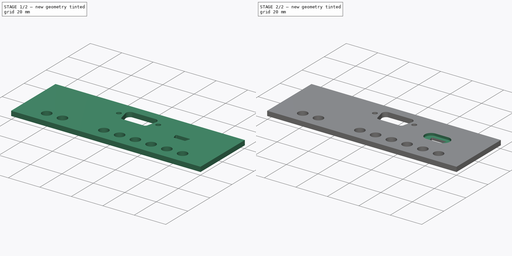
[diagram: build sequence overview — one tinted view per stage of 2, left to right]
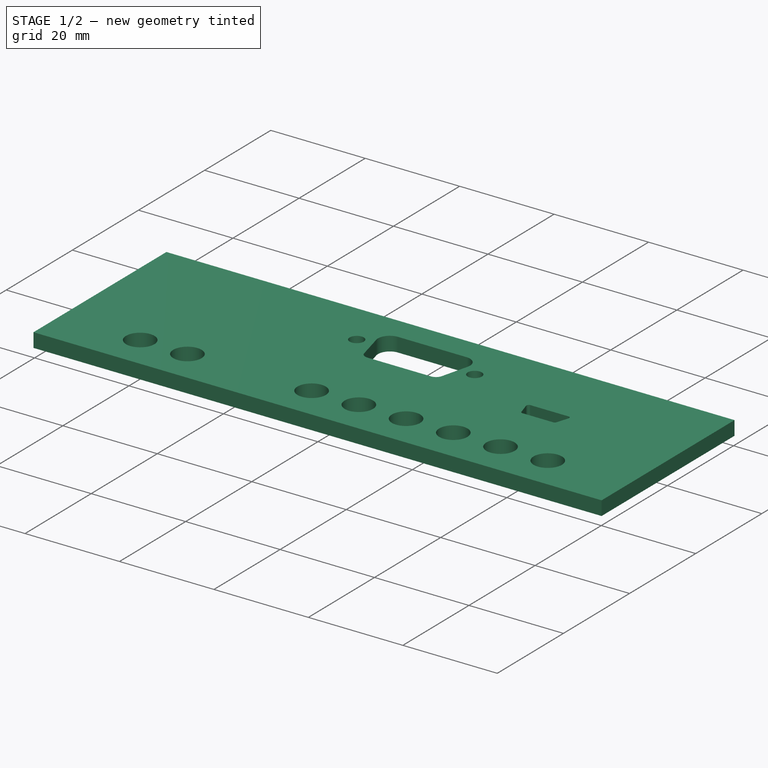
[diagram: stage 1 of 2 — iso view after this stage's code; geometry added in this stage tinted green]
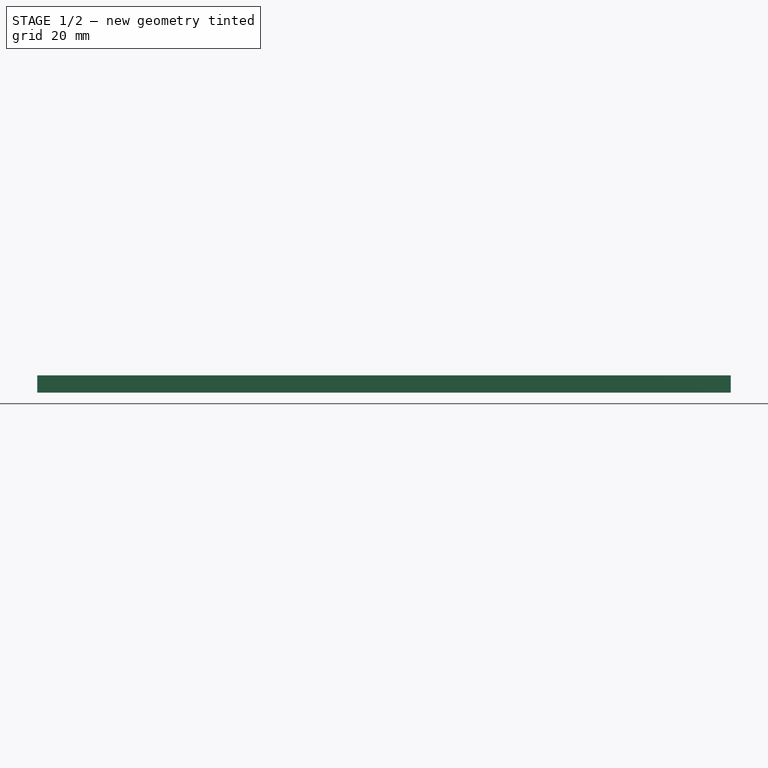
[diagram: stage 1 of 2 — front view after this stage's code; geometry added in this stage tinted green]
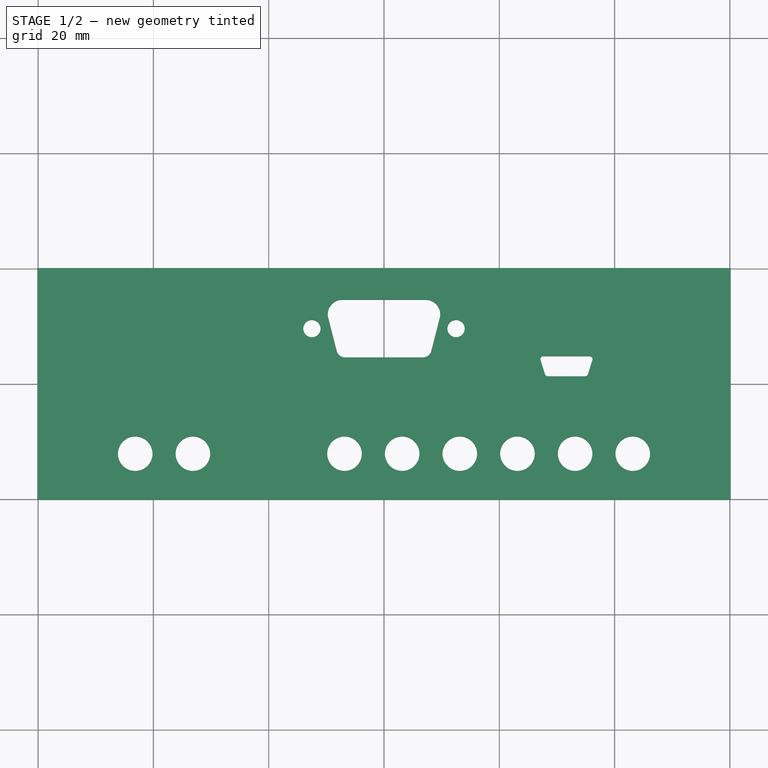
[diagram: stage 1 of 2 — top view after this stage's code; geometry added in this stage tinted green]
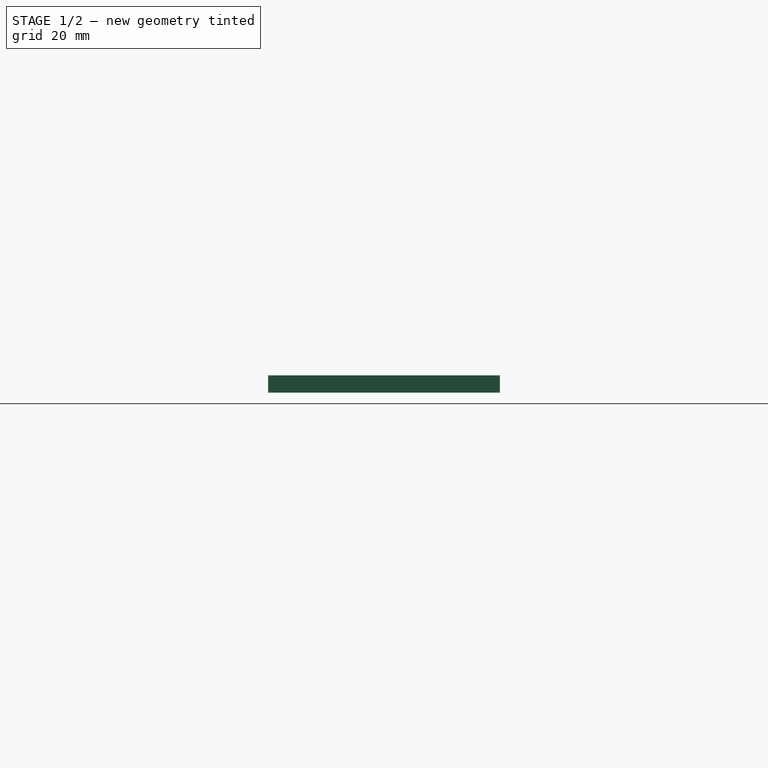
[diagram: stage 1 of 2 — right view after this stage's code; geometry added in this stage tinted green]
FCSTD DOCUMENT  (FreeCAD 0.21R33694 (Git))
Label: backside-fc21-5
License: All rights reserved
LicenseURL: http://en.wikipedia.org/wiki/All_rights_reserved
objects: Sketcher::SketchObject×2, PartDesign::Pad×1, PartDesign::Plane×1, PartDesign::Pocket×1, PartDesign::Body×1
note: 8 computed .brp shape members not serialized (recipe doc carries the construction recipe); baked Part::Feature solids carry a one-line shape summary decoded from their .brp

FEATURE [Sketcher::SketchObject] Sketch
  FullyConstrained = true
  MapMode = 5
  Support = -> [XY_Plane]
  sketch-geometry (43):
    g0: LineSegment StartX=-60.15 StartY=20.1 StartZ=0 EndX=60.15 EndY=20.1 EndZ=0
    g1: LineSegment StartX=60.15 StartY=20.1 StartZ=0 EndX=60.15 EndY=-20.1 EndZ=0
    g2: LineSegment StartX=60.15 StartY=-20.1 StartZ=0 EndX=-60.15 EndY=-20.1 EndZ=0
    g3: LineSegment StartX=-60.15 StartY=-20.1 StartZ=0 EndX=-60.15 EndY=20.1 EndZ=0
    g4: LineSegment StartX=28.4 StartY=1.325 StartZ=0 EndX=34.9 EndY=1.325 EndZ=0
    g5: LineSegment StartX=35.6723 StartY=4.825 StartZ=0 EndX=27.6277 EndY=4.825 EndZ=0
    g6: Circle CenterX=-12.5 CenterY=9.6 CenterZ=0 NormalX=0 NormalY=0 NormalZ=1 AngleXU=0 Radius=1.5
    g7: Circle CenterX=12.5 CenterY=9.6 CenterZ=0 NormalX=0 NormalY=0 NormalZ=1 AngleXU=0 Radius=1.5
    g8: LineSegment StartX=-7.25 StartY=14.6 StartZ=0 EndX=7.25 EndY=14.6 EndZ=0
    g9: LineSegment StartX=6.75 StartY=4.6 StartZ=0 EndX=-6.75 EndY=4.6 EndZ=0
    g10: LineSegment StartX=8.20337 StartY=5.72889 StartZ=0 EndX=9.67228 EndY=11.4815 EndZ=0
    g11: LineSegment StartX=-8.20337 StartY=5.72889 StartZ=0 EndX=-9.67228 EndY=11.4815 EndZ=0
    g12: ArcOfCircle CenterX=-6.75 CenterY=6.1 CenterZ=0 NormalX=0 NormalY=0 NormalZ=1 AngleXU=0 Radius=1.5 StartAngle=3.3916 EndAngle=4.71239
    g13: ArcOfCircle CenterX=-7.25 CenterY=12.1 CenterZ=0 NormalX=0 NormalY=0 NormalZ=1 AngleXU=0 Radius=2.5 StartAngle=1.5708 EndAngle=3.3916
    g14: ArcOfCircle CenterX=6.75 CenterY=6.1 CenterZ=0 NormalX=0 NormalY=0 NormalZ=1 AngleXU=0 Radius=1.5 StartAngle=4.71239 EndAngle=6.03318
    g15: ArcOfCircle CenterX=7.25 CenterY=12.1 CenterZ=0 NormalX=0 NormalY=0 NormalZ=1 AngleXU=0 Radius=2.5 StartAngle=6.03318 EndAngle=7.85398
    g16: LineSegment StartX=-8.20337 StartY=5.72889 StartZ=0 EndX=-12.5 EndY=9.6 EndZ=0
    g17: LineSegment StartX=8.20337 StartY=5.72889 StartZ=0 EndX=12.5 EndY=9.6 EndZ=0
    g18: LineSegment StartX=-12.5 StartY=9.6 StartZ=0 EndX=-9.67228 EndY=11.4815 EndZ=0
    g19: LineSegment StartX=12.5 StartY=9.6 StartZ=0 EndX=9.67228 EndY=11.4815 EndZ=0
    g20: LineSegment StartX=27.15 StartY=4.17743 StartZ=0 EndX=27.9223 EndY=1.67743 EndZ=0
    g21: LineSegment StartX=35.3777 StartY=1.67743 StartZ=0 EndX=36.15 EndY=4.17743 EndZ=0
    g22: ArcOfCircle CenterX=27.6277 CenterY=4.325 CenterZ=0 NormalX=0 NormalY=0 NormalZ=1 AngleXU=0 Radius=0.5 StartAngle=1.5708 EndAngle=3.4412
    g23: ArcOfCircle CenterX=28.4 CenterY=1.825 CenterZ=0 NormalX=0 NormalY=0 NormalZ=1 AngleXU=0 Radius=0.5 StartAngle=3.4412 EndAngle=4.71239
    g24: ArcOfCircle CenterX=34.9 CenterY=1.825 CenterZ=0 NormalX=0 NormalY=0 NormalZ=1 AngleXU=0 Radius=0.5 StartAngle=4.71239 EndAngle=5.98357
    g25: ArcOfCircle CenterX=35.6723 CenterY=4.325 CenterZ=0 NormalX=0 NormalY=0 NormalZ=1 AngleXU=0 Radius=0.5 StartAngle=5.98357 EndAngle=7.85398
    g26: Circle CenterX=43.15 CenterY=-12.1 CenterZ=0 NormalX=0 NormalY=0 NormalZ=1 AngleXU=0 Radius=3
    g27: Circle CenterX=33.15 CenterY=-12.1 CenterZ=0 NormalX=0 NormalY=0 NormalZ=1 AngleXU=0 Radius=3
    g28: Circle CenterX=23.15 CenterY=-12.1 CenterZ=0 NormalX=0 NormalY=0 NormalZ=1 AngleXU=0 Radius=3
    g29: Circle CenterX=13.15 CenterY=-12.1 CenterZ=0 NormalX=0 NormalY=0 NormalZ=1 AngleXU=0 Radius=3
    g30: Circle CenterX=3.15 CenterY=-12.1 CenterZ=0 NormalX=0 NormalY=0 NormalZ=1 AngleXU=0 Radius=3
    g31: Circle CenterX=-6.85 CenterY=-12.1 CenterZ=0 NormalX=0 NormalY=0 NormalZ=1 AngleXU=0 Radius=3
    g32: Circle CenterX=-33.15 CenterY=-12.1 CenterZ=0 NormalX=0 NormalY=0 NormalZ=1 AngleXU=0 Radius=3
    g33: Circle CenterX=-43.15 CenterY=-12.1 CenterZ=0 NormalX=0 NormalY=0 NormalZ=1 AngleXU=0 Radius=3
    g34: LineSegment StartX=43.15 StartY=-12.1 StartZ=0 EndX=33.15 EndY=-12.1 EndZ=0
    g35: LineSegment StartX=33.15 StartY=-12.1 StartZ=0 EndX=23.15 EndY=-12.1 EndZ=0
    g36: LineSegment StartX=23.15 StartY=-12.1 StartZ=0 EndX=13.15 EndY=-12.1 EndZ=0
    g37: LineSegment StartX=13.15 StartY=-12.1 StartZ=0 EndX=3.15 EndY=-12.1 EndZ=0
    g38: LineSegment StartX=3.15 StartY=-12.1 StartZ=0 EndX=-6.85 EndY=-12.1 EndZ=0
    g39: LineSegment StartX=-6.85 StartY=-12.1 StartZ=0 EndX=-33.15 EndY=-12.1 EndZ=0
    g40: LineSegment StartX=-33.15 StartY=-12.1 StartZ=0 EndX=-43.15 EndY=-12.1 EndZ=0
    g41: LineSegment StartX=-9.75 StartY=12.1 StartZ=0 EndX=-9.75 EndY=17.1 EndZ=0
    g42: LineSegment StartX=9.75 StartY=12.1 StartZ=0 EndX=9.75 EndY=17.1 EndZ=0
  constraints (108):
    c: Coincident(g0,g1)
    c: Coincident(g2,g3)
    c: Coincident(g3,g0)
    c: Horizontal(g2)
    c: Vertical(g1)
    c: DistanceX(g0,g0) = 120.3
    c: Symmetric(g0,g0,g-2)
    c: Symmetric(g0,g2,g-1)
    c: DistanceY(g2,g0) = 40.2
    c: Horizontal(g8)
    c: Horizontal(g9)
    c: Equal(g11,g10)
    c: Equal(g7,g6)
    c: Radius(g7) = 1.5
    c: Tangent(g11,g12) = 1.5708
    c: Tangent(g9,g12) = 1.5708
    c: Tangent(g11,g13) = 1.5708
    c: Tangent(g8,g13) = 1.5708
    c: Tangent(g9,g14) = 1.5708
    c: Tangent(g10,g14) = -1.5708
    c: Tangent(g8,g15) = 1.5708
    c: Tangent(g10,g15) = -1.5708
    c: Equal(g14,g12)
    c: Equal(g13,g15)
    c: Radius(g15) = 2.5
    c: DistanceY(g9,g8) = 10
    c: DistanceX(g9,g9) = 13.5
    c: DistanceX(g6,g7) = 25
    c: DistanceY(g7,g8) = 5
    c: Coincident(g16,g11)
    c: Coincident(g16,g6)
    c: Coincident(g17,g10)
    c: Coincident(g17,g7)
    c: Equal(g17,g16)
    c: Coincident(g18,g6)
    c: Coincident(g18,g11)
    c: Coincident(g19,g7)
    c: Coincident(g19,g10)
    c: Equal(g19,g18)
    c: DistanceX(g0,g6) = 47.65
    c: DistanceY(g8,g0) = 5.5
    c: Tangent(g20,g22) = -1.5708
    c: Tangent(g5,g22) = -1.5708
    c: Tangent(g20,g23) = -1.5708
    c: Tangent(g4,g23) = -1.5708
    c: Tangent(g4,g24) = -1.5708
    c: Tangent(g21,g24) = -1.5708
    c: Tangent(g5,g25) = -1.5708
    c: Tangent(g21,g25) = -1.5708
    c: Equal(g21,g20)
    c: Equal(g24,g23)
    c: Equal(g25,g22)
    c: Equal(g24,g25)
    c: Radius(g24) = 0.5
    c: Horizontal(g5)
    c: Horizontal(g4)
    c: DistanceY(g5,g0) = 15.275
    c: DistanceY(g4,g5) = 3.5
    c: DistanceX(g20,g21) = 9
    c: DistanceX(g4,g4) = 6.5
    c: DistanceX(g21,g0) = 24
    c: Equal(g26,g27)
    c: Equal(g27,g28)
    c: Equal(g29,g30)
    c: Equal(g30,g31)
    c: Equal(g31,g32)
    c: Equal(g32,g33)
    c: Equal(g28,g29)
    c: Coincident(g34,g27)
    c: Horizontal(g34)
    c: Coincident(g35,g27)
    c: Coincident(g35,g28)
    c: Horizontal(g35)
    c: Coincident(g36,g28)
    c: Coincident(g36,g29)
    c: Horizontal(g36)
    c: Coincident(g37,g30)
    c: Horizontal(g37)
    c: Coincident(g38,g30)
    c: Coincident(g38,g31)
    c: Horizontal(g38)
    c: Coincident(g39,g31)
    c: Coincident(g39,g32)
    c: Horizontal(g39)
    c: Coincident(g40,g32)
    c: Coincident(g40,g33)
    c: Horizontal(g40)
    c: Coincident(g37,g29)
    c: DistanceX(g2,g33) = 17
    c: DistanceX(g40,g40) = 10
    c: Equal(g40,g38)
    c: Equal(g37,g38)
    c: Equal(g37,g36)
    c: Equal(g36,g35)
    c: Equal(g34,g35)
    c: DistanceY(g2,g33) = 8
    c: Radius(g29) = 3
    c: Coincident(g26,g34)
    c: Coincident(g1,g2)
    c: DistanceX(g26,g1) = 17
    c: Radius(g14) = 1.5
    c: Vertical(g41)
    c: Vertical(g42)
    c: DistanceX(g41,g42) = 19.5
    c: Tangent(g41,g13) = 1.5708
    c: Tangent(g42,g15) = -1.5708
    c: DistanceY(g41,g41) = 5
    c: Equal(g42,g41)
FEATURE [PartDesign::Pad] Pad
  Direction = (0,0,1)
  Length = 3
  Length2 = 10
  Profile = -> Sketch
  ReferenceAxis = -> Sketch [N_Axis]
  Type = 0
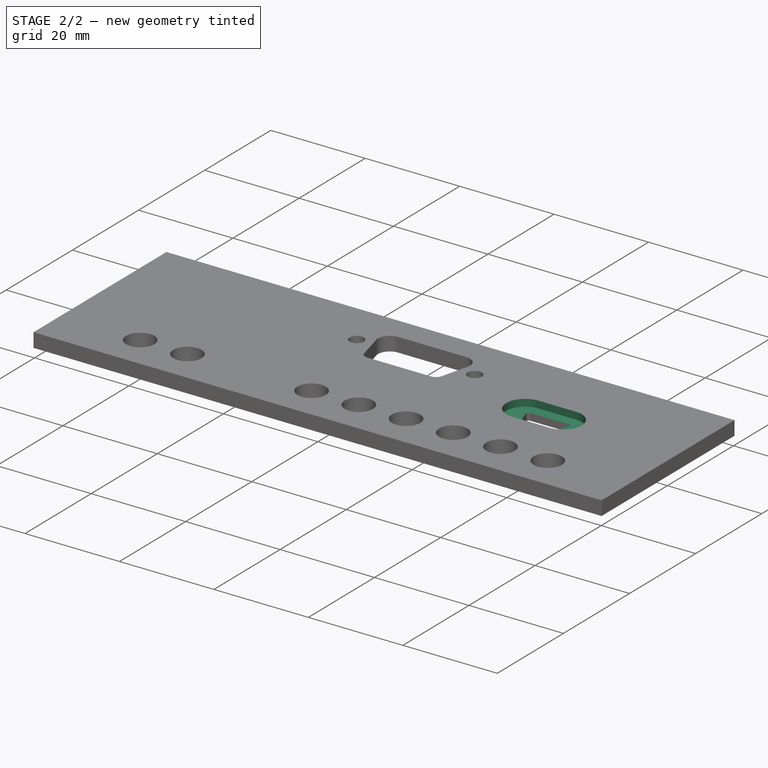
[diagram: stage 2 of 2 — iso view after this stage's code; geometry added in this stage tinted green]
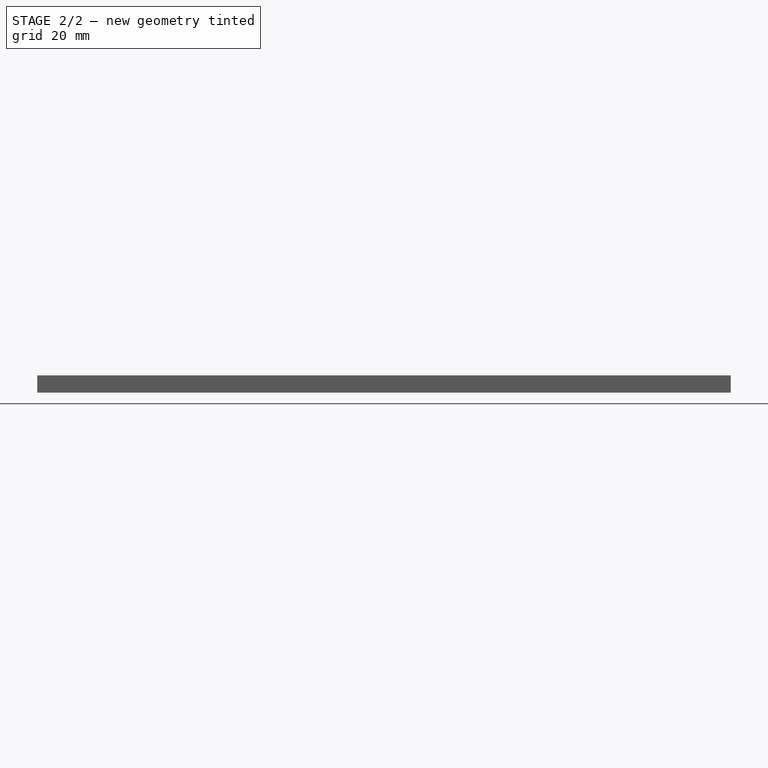
[diagram: stage 2 of 2 — front view after this stage's code; geometry added in this stage tinted green]
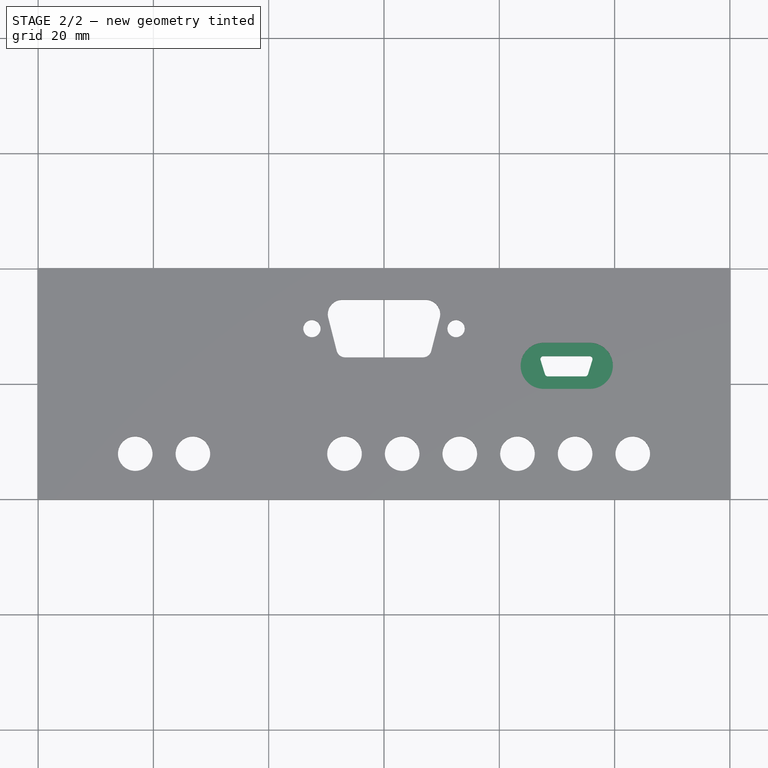
[diagram: stage 2 of 2 — top view after this stage's code; geometry added in this stage tinted green]
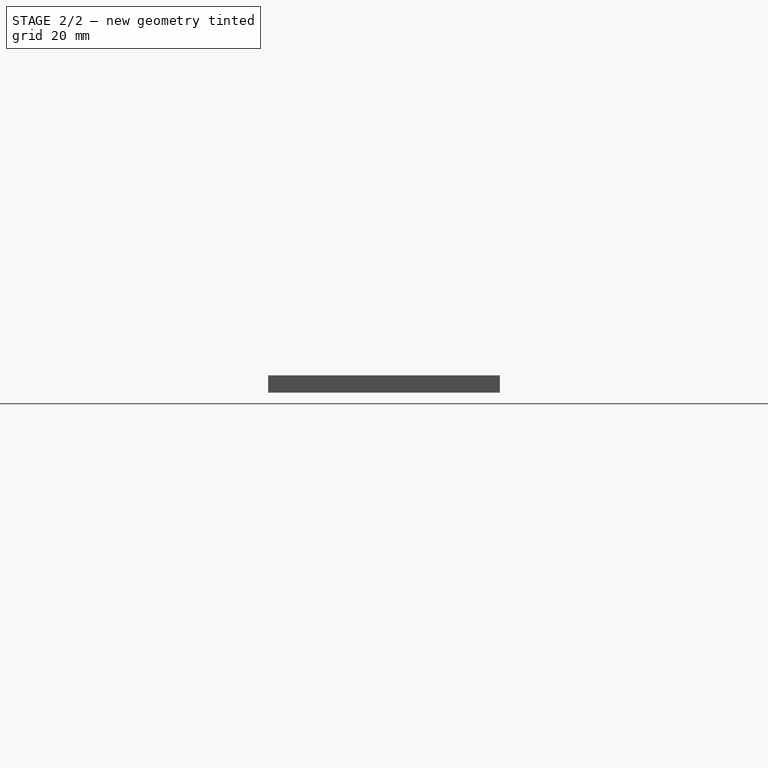
[diagram: stage 2 of 2 — right view after this stage's code; geometry added in this stage tinted green]
FEATURE [PartDesign::Plane] DatumPlane
  Length = 60
  MapMode = 5
  Placement = pos=(0,0,3) rot=(0,0,1;0rad)
  ResizeMode = 0
  Support = -> [Pad]
  Width = 60
FEATURE [Sketcher::SketchObject] Sketch001
  FullyConstrained = true
  MapMode = 5
  Placement = pos=(0,0,3) rot=(0,0,1;0rad)
  Support = -> [Pad]
  sketch-geometry (7):
    g0: ArcOfCircle CenterX=27.7 CenterY=3.13 CenterZ=0 NormalX=0 NormalY=0 NormalZ=1 AngleXU=0 Radius=4 StartAngle=1.5708 EndAngle=4.71239
    g1: ArcOfCircle CenterX=35.7 CenterY=3.13 CenterZ=0 NormalX=0 NormalY=0 NormalZ=1 AngleXU=0 Radius=4 StartAngle=4.71239 EndAngle=7.85398
    g2: LineSegment StartX=27.7 StartY=-0.87 StartZ=0 EndX=35.7 EndY=-0.87 EndZ=0
    g3: LineSegment StartX=35.7 StartY=7.13 StartZ=0 EndX=27.7 EndY=7.13 EndZ=0
    g4: LineSegment StartX=27.7 StartY=7.13 StartZ=0 EndX=27.7 EndY=4.88 EndZ=0
    g5: LineSegment StartX=27.7 StartY=4.88 StartZ=0 EndX=35.7 EndY=4.88 EndZ=0
    g6: LineSegment StartX=35.7 StartY=7.13 StartZ=0 EndX=35.7 EndY=4.88 EndZ=0
  constraints (18):
    c: Tangent(g0,g2) = -1.5708
    c: Tangent(g2,g1) = -1.5708
    c: Tangent(g1,g3) = -1.5708
    c: Tangent(g3,g0) = -1.5708
    c: Equal(g0,g1)
    c: Horizontal(g2)
    c: DistanceY(g1,g1) = 8
    c: DistanceX(g0,g1) = 8
    c: Coincident(g4,g0)
    c: Vertical(g4)
    c: Coincident(g5,g4)
    c: Horizontal(g5)
    c: Coincident(g6,g1)
    c: Coincident(g6,g5)
    c: Vertical(g6)
    c: DistanceY(g4,g0) = 2.25
    c: DistanceY(g-1,g4) = 4.88
    c: DistanceX(g-1,g4) = 27.7
FEATURE [PartDesign::Pocket] Pocket
  BaseFeature = -> Pad
  Direction = (0,0,-1)
  Length = 1.5
  Length2 = 5
  Profile = -> Sketch001
  ReferenceAxis = -> Sketch001 [N_Axis]
  Type = 0
FEATURE [PartDesign::Body] Body
  Group = -> [Sketch,Pad,DatumPlane,Sketch001,Pocket]
  Origin = -> Origin
  Tip = -> Pocket
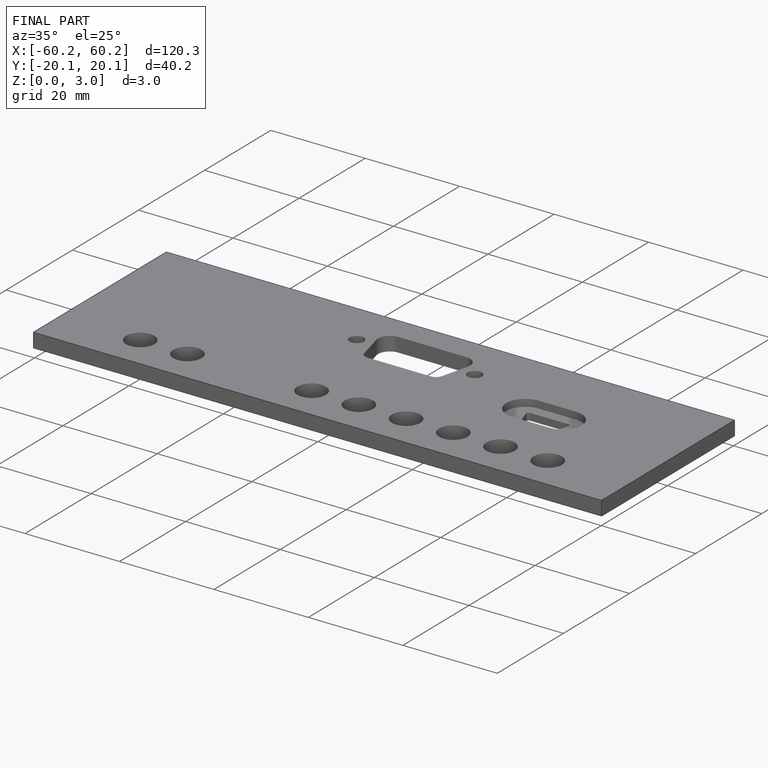
[diagram: finished part — iso view with bounding-box wireframe]
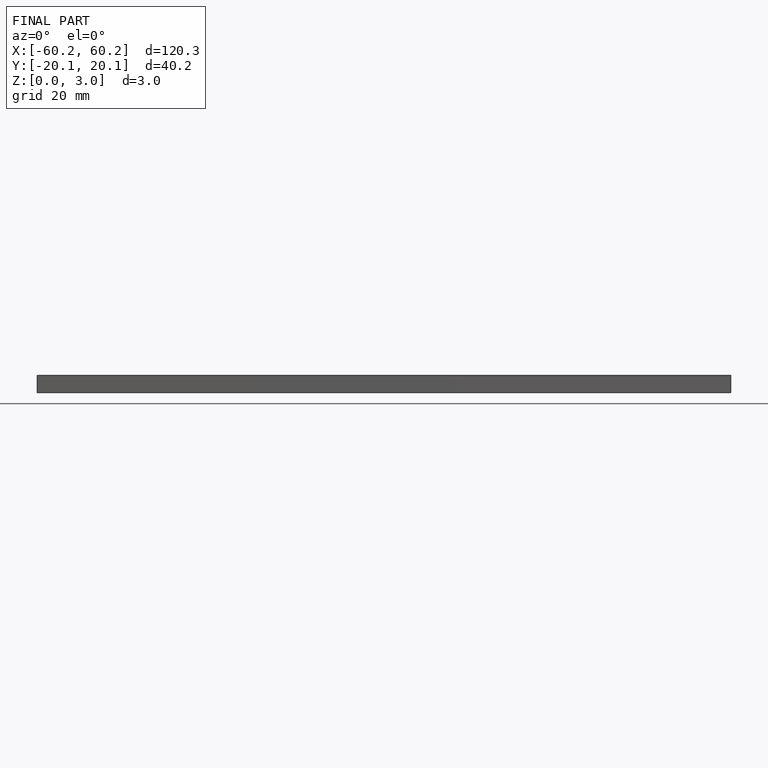
[diagram: finished part — front view with bounding-box wireframe]
